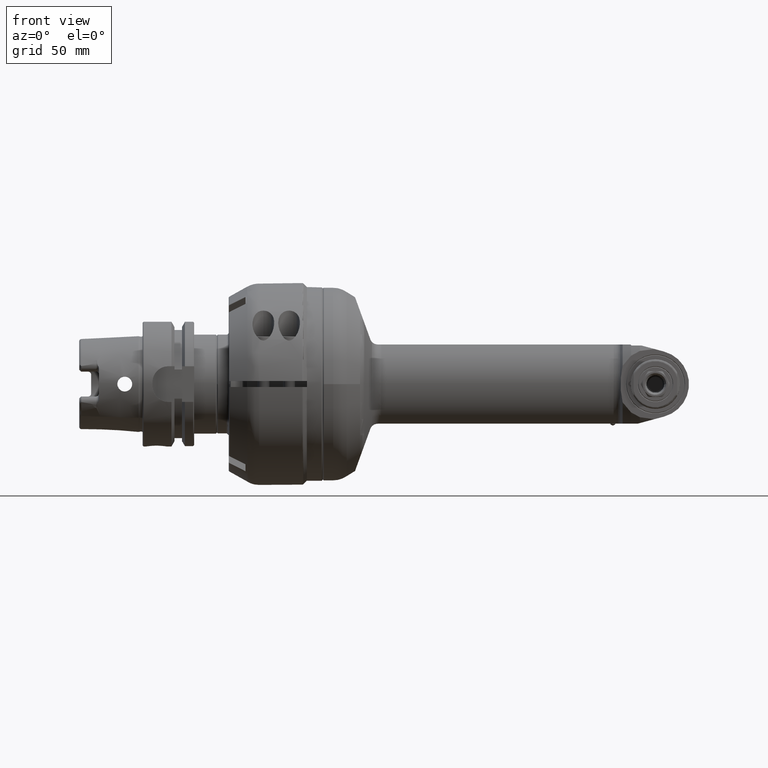
[diagram: clean part render]
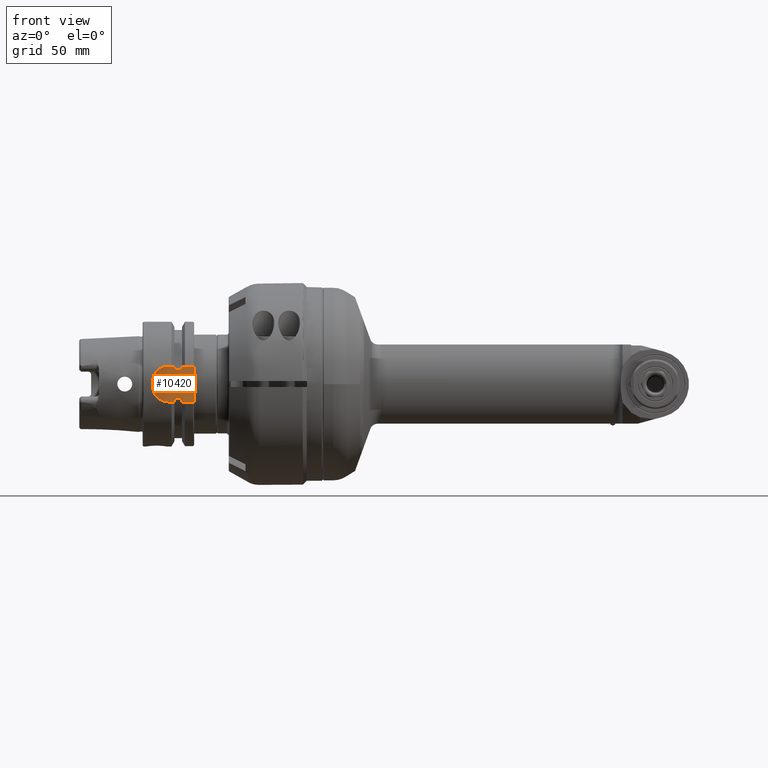
[diagram: same view with one face highlighted and labeled with its STEP entity id]
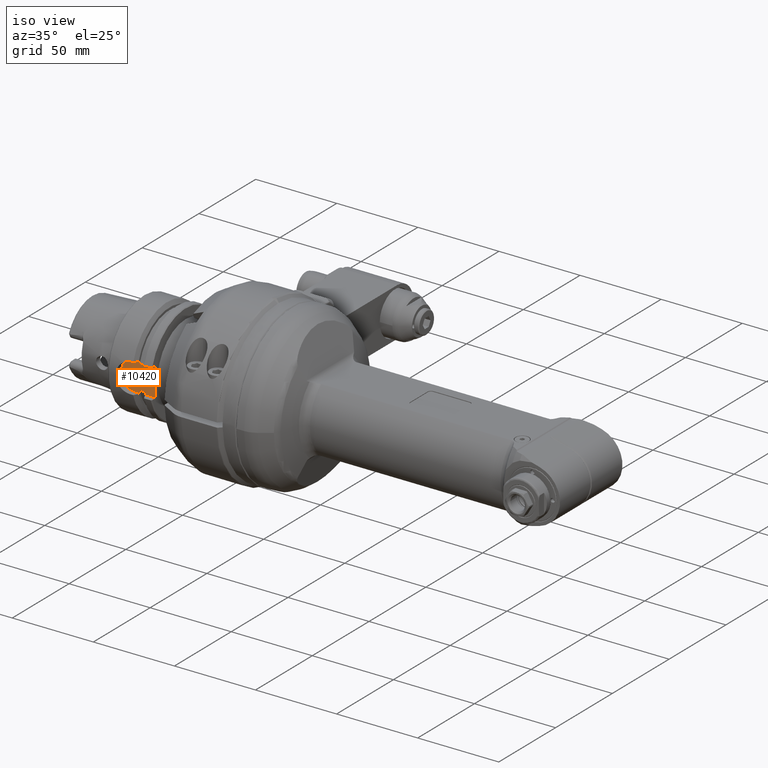
[diagram: same view with one face highlighted and labeled with its STEP entity id]
A machine part, front view. The second image highlights one B-rep face of the part: STEP entity #10420.
A second angle (iso view) of the same face is appended — the face is thin or edge-on in the first view.
In plain terms, the highlighted planar face has unit normal (0, -1, 0).
Its self-contained STEP definition (entity closure, byte-faithful):
#513=LINE('',#17132,#1209);
#515=LINE('',#17136,#1211);
#518=LINE('',#17144,#1214);
#521=LINE('',#17152,#1217);
#523=LINE('',#17156,#1219);
#524=LINE('',#17160,#1220);
#525=LINE('',#17164,#1221);
#535=LINE('',#17210,#1231);
#541=LINE('',#17258,#1237);
#543=LINE('',#17265,#1239);
#544=LINE('',#17267,#1240);
#545=LINE('',#17268,#1241);
#1209=VECTOR('',#12669,1.65153077165);
#1211=VECTOR('',#12673,3.125);
#1214=VECTOR('',#12682,2.);
#1217=VECTOR('',#12691,3.125);
#1219=VECTOR('',#12695,1.65153077165);
#1220=VECTOR('',#12700,3.75);
#1221=VECTOR('',#12705,1.65153077165);
#1231=VECTOR('',#12727,18.);
#1237=VECTOR('',#12755,6.125);
#1239=VECTOR('',#12765,3.75);
#1240=VECTOR('',#12766,1.65153077165);
#1241=VECTOR('',#12767,6.125);
#2224=FACE_OUTER_BOUND('',#2878,.T.);
#2878=EDGE_LOOP('',(#7250,#7251,#7252,#7253,#7254,#7255,#7256,#7257,#7258,
#7259,#7260,#7261,#7262,#7263));
#3592=CIRCLE('',#11148,8.);
#3593=CIRCLE('',#11151,8.);
#4287=VERTEX_POINT('',#17129);
#4288=VERTEX_POINT('',#17131);
#4289=VERTEX_POINT('',#17135);
#4290=VERTEX_POINT('',#17139);
#4291=VERTEX_POINT('',#17143);
#4292=VERTEX_POINT('',#17147);
#4293=VERTEX_POINT('',#17151);
#4294=VERTEX_POINT('',#17155);
#4295=VERTEX_POINT('',#17159);
#4296=VERTEX_POINT('',#17163);
#4309=VERTEX_POINT('',#17207);
#4310=VERTEX_POINT('',#17209);
#4320=VERTEX_POINT('',#17264);
#4321=VERTEX_POINT('',#17266);
#5392=EDGE_CURVE('',#4288,#4287,#513,.T.);
#5394=EDGE_CURVE('',#4289,#4288,#515,.T.);
#5397=EDGE_CURVE('',#4290,#4289,#3592,.T.);
#5398=EDGE_CURVE('',#4291,#4290,#518,.T.);
#5401=EDGE_CURVE('',#4292,#4291,#3593,.T.);
#5402=EDGE_CURVE('',#4293,#4292,#521,.T.);
#5404=EDGE_CURVE('',#4294,#4293,#523,.T.);
#5406=EDGE_CURVE('',#4294,#4295,#524,.T.);
#5408=EDGE_CURVE('',#4296,#4295,#525,.T.);
#5424=EDGE_CURVE('',#4309,#4310,#535,.T.);
#5440=EDGE_CURVE('',#4309,#4296,#541,.T.);
#5443=EDGE_CURVE('',#4320,#4287,#543,.T.);
#5444=EDGE_CURVE('',#4320,#4321,#544,.T.);
#5445=EDGE_CURVE('',#4321,#4310,#545,.T.);
#7250=ORIENTED_EDGE('',*,*,#5424,.F.);
#7251=ORIENTED_EDGE('',*,*,#5440,.T.);
#7252=ORIENTED_EDGE('',*,*,#5408,.T.);
#7253=ORIENTED_EDGE('',*,*,#5406,.F.);
#7254=ORIENTED_EDGE('',*,*,#5404,.T.);
#7255=ORIENTED_EDGE('',*,*,#5402,.T.);
#7256=ORIENTED_EDGE('',*,*,#5401,.T.);
#7257=ORIENTED_EDGE('',*,*,#5398,.T.);
#7258=ORIENTED_EDGE('',*,*,#5397,.T.);
#7259=ORIENTED_EDGE('',*,*,#5394,.T.);
#7260=ORIENTED_EDGE('',*,*,#5392,.T.);
#7261=ORIENTED_EDGE('',*,*,#5443,.F.);
#7262=ORIENTED_EDGE('',*,*,#5444,.T.);
#7263=ORIENTED_EDGE('',*,*,#5445,.T.);
#10095=PLANE('',#11178);
#10420=ADVANCED_FACE('',(#2224),#10095,.T.);
#11148=AXIS2_PLACEMENT_3D('',#17141,#12678,#12679);
#11151=AXIS2_PLACEMENT_3D('',#17149,#12687,#12688);
#11178=AXIS2_PLACEMENT_3D('',#17263,#12763,#12764);
#12669=DIRECTION('',(6.88372506726E-14,0.,1.));
#12673=DIRECTION('',(1.,0.,0.));
#12678=DIRECTION('center_axis',(0.,-1.,0.));
#12679=DIRECTION('ref_axis',(-1.,0.,0.));
#12682=DIRECTION('',(0.,0.,-1.));
#12687=DIRECTION('center_axis',(0.,-1.,0.));
#12688=DIRECTION('ref_axis',(-3.552713678801E-14,0.,1.));
#12691=DIRECTION('',(-1.,0.,0.));
#12695=DIRECTION('',(0.,0.,1.));
#12700=DIRECTION('',(1.,0.,0.));
#12705=DIRECTION('',(0.,0.,-1.));
#12727=DIRECTION('',(0.,0.,-1.));
#12755=DIRECTION('',(-1.,0.,0.));
#12763=DIRECTION('center_axis',(0.,-1.,0.));
#12764=DIRECTION('ref_axis',(-1.,0.,0.));
#12765=DIRECTION('',(-1.,0.,0.));
#12766=DIRECTION('',(-5.162793800445E-14,0.,-1.));
#12767=DIRECTION('',(1.,0.,0.));
#17129=CARTESIAN_POINT('',(-242.875,-26.5,-7.34846922835));
#17131=CARTESIAN_POINT('',(-242.875,-26.5,-9.));
#17132=CARTESIAN_POINT('',(-242.875,-26.5,-9.));
#17135=CARTESIAN_POINT('',(-246.,-26.5,-9.));
#17136=CARTESIAN_POINT('',(-246.,-26.5,-9.));
#17139=CARTESIAN_POINT('',(-254.,-26.5,-1.));
#17141=CARTESIAN_POINT('Origin',(-246.,-26.5,-1.));
#17143=CARTESIAN_POINT('',(-254.,-26.5,1.));
#17144=CARTESIAN_POINT('',(-254.,-26.5,1.));
#17147=CARTESIAN_POINT('',(-246.,-26.5,9.));
#17149=CARTESIAN_POINT('Origin',(-246.,-26.5,1.));
#17151=CARTESIAN_POINT('',(-242.875,-26.5,9.));
#17152=CARTESIAN_POINT('',(-242.875,-26.5,9.));
#17155=CARTESIAN_POINT('',(-242.875,-26.5,7.34846922835));
#17156=CARTESIAN_POINT('',(-242.875,-26.5,7.34846922835));
#17159=CARTESIAN_POINT('',(-239.125,-26.5,7.34846922835));
#17160=CARTESIAN_POINT('',(-242.875,-26.5,7.34846922835));
#17163=CARTESIAN_POINT('',(-239.125,-26.5,9.));
#17164=CARTESIAN_POINT('',(-239.125,-26.5,9.));
#17207=CARTESIAN_POINT('',(-233.,-26.5,9.));
#17209=CARTESIAN_POINT('',(-233.,-26.5,-9.));
#17210=CARTESIAN_POINT('',(-233.,-26.5,9.));
#17258=CARTESIAN_POINT('',(-233.,-26.5,9.));
#17263=CARTESIAN_POINT('Origin',(-208.005,-26.5,0.));
#17264=CARTESIAN_POINT('',(-239.125,-26.5,-7.34846922835));
#17265=CARTESIAN_POINT('',(-239.125,-26.5,-7.34846922835));
#17266=CARTESIAN_POINT('',(-239.125,-26.5,-9.));
#17267=CARTESIAN_POINT('',(-239.125,-26.5,-7.34846922835));
#17268=CARTESIAN_POINT('',(-239.125,-26.5,-9.));